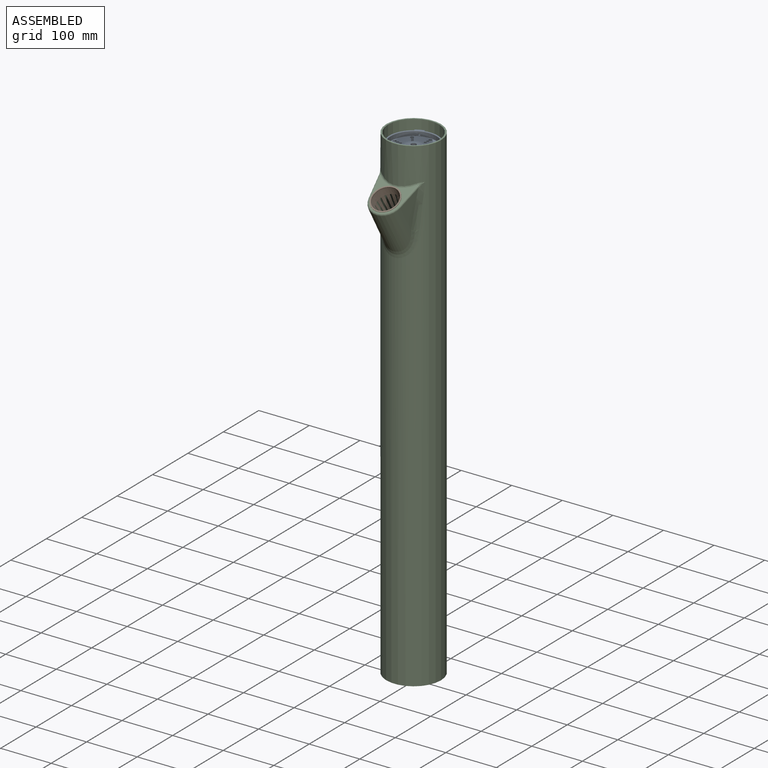
[diagram: assembled view]
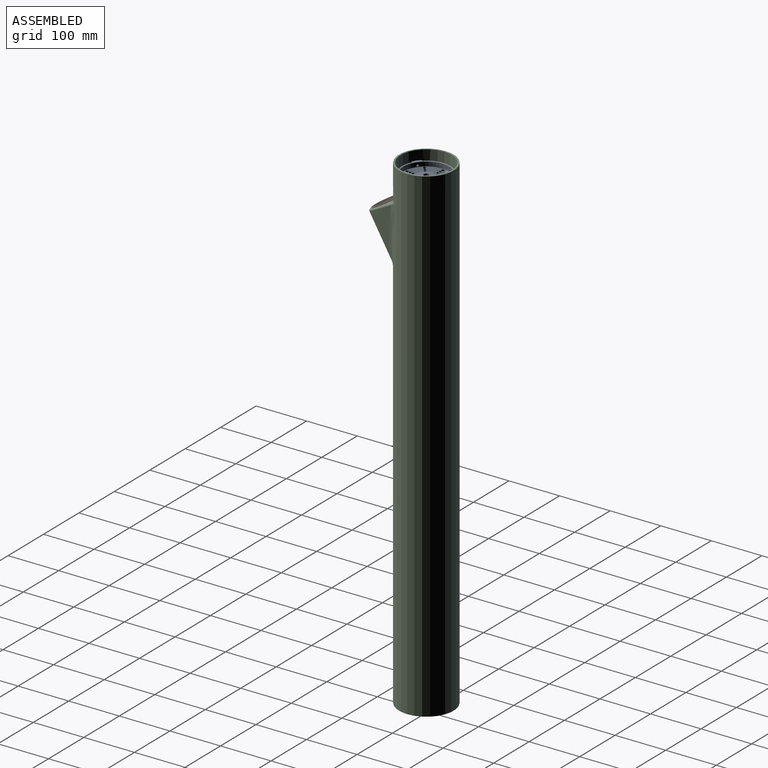
[diagram: assembled view, second angle]
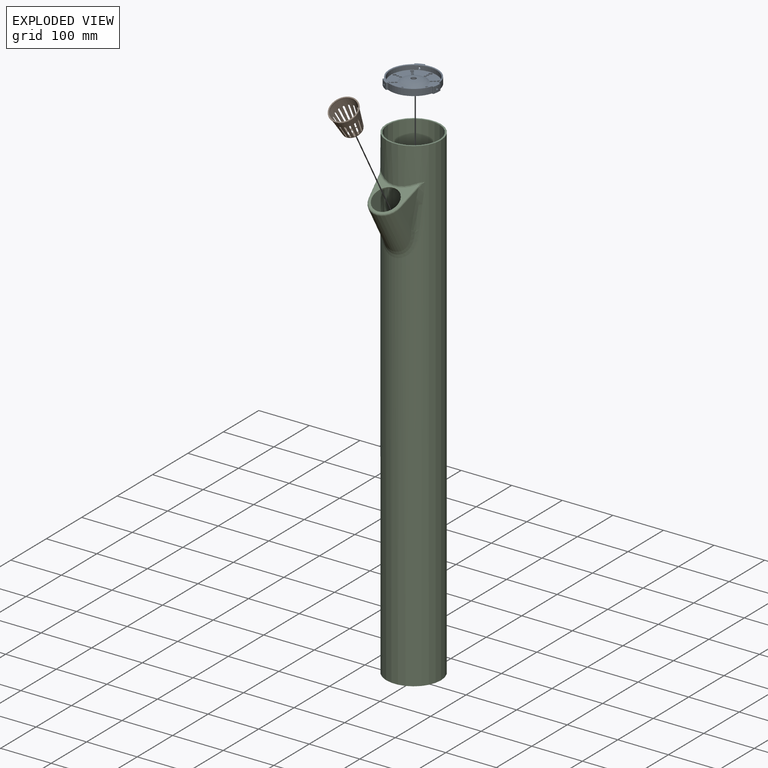
[diagram: exploded view]
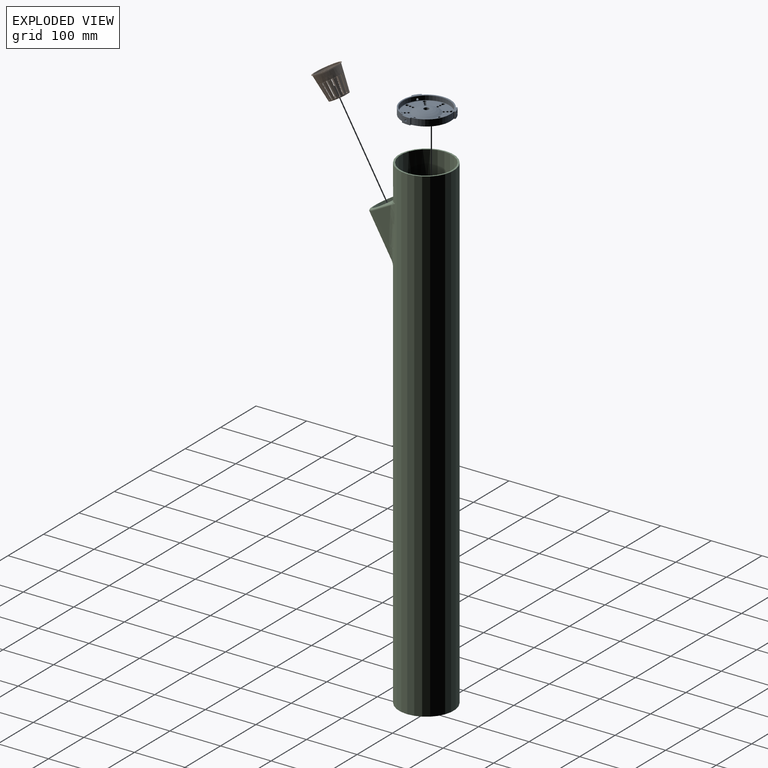
[diagram: exploded view, second angle]
ASSEMBLY  parts=3 mates=2
PART A: 55 faces, bbox 100.8x101.2x12.7 mm
  f0: plane 98.55x95.5mm, normal (0,0,-1), area 6702mm2, adj f1,f2,f3,f5,f11,f12,f13,f14
  f1: cylinder r=50.8mm len=14.52mm, axis (0,0,-1), area 202mm2, adj f0,f6,f36,f50,f53
  f2: cylinder r=50.8mm len=15.28mm, axis (0,0,-1), area 212.2mm2, adj f0,f6,f37,f45,f51
  f3: cylinder r=50.8mm len=16.85mm, axis (0,0,-1), area 202mm2, adj f0,f6,f35,f46,f54
  f4: cylinder r=45.21mm len=90.42mm, axis (0,0,-1), area 2216.1mm2, adj f7,f8,f35,f36,f37
  f5: cylinder r=5.08mm len=10.16mm, axis (0,0,-1), area 304mm2, adj f0,f10
  f6: plane 98.55x95.5mm, normal (0,0,1), area 672.2mm2, adj f1,f2,f3,f7,f38,f39,f40,f41
  f7: torus R=46.01mm, axis (0,0,-1), area 356.5mm2, adj f4,f6
  f8: torus R=44.42mm, axis (0,0,-1), area 351.9mm2, adj f4,f9
  f9: plane 88.84x88.84mm, normal (0,0,1), area 3509.7mm2, adj f8,f10,f11,f12,f13,f14,f15,f16
  f10: torus R=5.1mm, axis (0,0,-1), area 2236.1mm2, adj f5,f9
  f11: cylinder r=2.38mm len=4.76mm, axis (0,0,-1), area 47.5mm2, adj f0,f9
  f12: cylinder r=2.38mm len=4.76mm, axis (0,0,-1), area 47.5mm2, adj f0,f9
  f13: cylinder r=2.38mm len=4.76mm, axis (0,0,-1), area 47.5mm2, adj f0,f9
  f14: cylinder r=2.38mm len=4.76mm, axis (0,0,-1), area 47.5mm2, adj f0,f9
  f15: cylinder r=3.17mm len=6.35mm, axis (0,0,-1), area 63.3mm2, adj f0,f9
  f16: cylinder r=2.38mm len=4.76mm, axis (0,0,-1), area 47.5mm2, adj f0,f9
  f17: cylinder r=2.38mm len=4.76mm, axis (0,0,-1), area 47.5mm2, adj f0,f9
  f18: cylinder r=3.17mm len=6.35mm, axis (0,0,-1), area 63.3mm2, adj f0,f9
  f19: cylinder r=3.17mm len=6.35mm, axis (0,0,-1), area 63.3mm2, adj f0,f9
  f20: cylinder r=2.38mm len=4.76mm, axis (0,0,-1), area 47.5mm2, adj f0,f9
  f21: cylinder r=2.38mm len=4.76mm, axis (0,0,-1), area 47.5mm2, adj f0,f9
  f22: cylinder r=2.38mm len=4.76mm, axis (0,0,-1), area 47.5mm2, adj f0,f9
  f23: cylinder r=2.38mm len=4.76mm, axis (0,0,-1), area 47.5mm2, adj f0,f9
  f24: cylinder r=3.17mm len=6.35mm, axis (0,0,-1), area 63.3mm2, adj f0,f9
  f25: cylinder r=2.38mm len=4.76mm, axis (0,0,-1), area 47.5mm2, adj f0,f9
  f26: cylinder r=3.17mm len=6.35mm, axis (0,0,-1), area 63.3mm2, adj f0,f9
  f27: cylinder r=2.38mm len=4.76mm, axis (0,0,-1), area 47.5mm2, adj f0,f9
  f28: cylinder r=2.38mm len=4.76mm, axis (0,0,-1), area 47.5mm2, adj f0,f9
  f29: cylinder r=3.17mm len=6.35mm, axis (0,0,-1), area 63.3mm2, adj f0,f9
  f30: cylinder r=2.38mm len=4.76mm, axis (0,0,-1), area 47.5mm2, adj f0,f9
  f31: cylinder r=3.17mm len=6.35mm, axis (0,0,-1), area 63.3mm2, adj f0,f9
  f32: cylinder r=2.38mm len=4.76mm, axis (0,0,-1), area 47.5mm2, adj f0,f9
  f33: cylinder r=3.17mm len=6.35mm, axis (0,0,-1), area 63.3mm2, adj f0,f9
  f34: cylinder r=2.38mm len=4.76mm, axis (0,0,-1), area 47.5mm2, adj f0,f9
  f35: cylinder r=2.03mm len=5.63mm, axis (0,-1,0), area 71.4mm2, adj f3,f4
  f36: cylinder r=2.03mm len=6.91mm, axis (-0.87,0.5,0), area 71.4mm2, adj f1,f4
  f37: cylinder r=2.03mm len=6.91mm, axis (0.87,0.5,0), area 71.4mm2, adj f2,f4
  f38: cylinder r=0.79mm len=12.7mm, axis (0,0,-1), area 15.7mm2, adj f0,f6,f39,f42
  f39: plane 12.7x1.44mm, normal (-0.98,0.17,0), area 18.6mm2, adj f0,f6,f38,f54
  f40: plane 12.7x1.37mm, normal (-0.34,-0.94,0), area 18.6mm2, adj f0,f6,f41,f53
  f41: cylinder r=0.79mm len=12.7mm, axis (0,0,-1), area 15.7mm2, adj f0,f6,f40,f42
  f42: cylinder r=47.75mm len=62.48mm, axis (0,0,-1), area 1038.6mm2, adj f0,f6,f38,f41
  f43: cylinder r=47.75mm len=62.48mm, axis (0,0,-1), area 1038.6mm2, adj f0,f6,f44,f47
  f44: cylinder r=0.79mm len=12.7mm, axis (0,0,-1), area 15.7mm2, adj f0,f6,f43,f45
  f45: plane 12.7x2.12mm, normal (0.34,-0.94,0), area 28.7mm2, adj f0,f2,f6,f44
  f46: plane 12.7x2.23mm, normal (0.98,0.17,0), area 28.7mm2, adj f0,f3,f6,f47
  f47: cylinder r=0.79mm len=12.7mm, axis (0,0,-1), area 15.7mm2, adj f0,f6,f43,f46
  f48: cylinder r=47.75mm len=72.15mm, axis (0,0,-1), area 1038.6mm2, adj f0,f6,f49,f52
  f49: cylinder r=0.79mm len=12.7mm, axis (0,0,-1), area 15.7mm2, adj f0,f6,f48,f50
  f50: plane 12.7x1.73mm, normal (0.64,0.77,0), area 28.7mm2, adj f0,f1,f6,f49
  f51: plane 12.7x1.73mm, normal (-0.64,0.77,0), area 28.7mm2, adj f0,f2,f6,f52
  f52: cylinder r=0.79mm len=12.7mm, axis (0,0,-1), area 15.7mm2, adj f0,f6,f48,f51
  f53: cylinder r=0.79mm len=12.7mm, axis (0,0,-1), area 16mm2, adj f0,f1,f6,f40
  f54: cylinder r=0.79mm len=12.7mm, axis (0,0,-1), area 16mm2, adj f0,f3,f6,f39
PART B: 77 faces, bbox 54x54x50.8 mm
  f0: plane 37.19x37.19mm, normal (0,0,-1), area 801.3mm2, adj f1,f73,f74,f75,f76
  f1: cone r=18.6mm half-angle=8deg, axis (0,0,1), area 5078.8mm2, adj f0,f2,f9,f10,f11,f12,f13,f14
  f2: cylinder r=25.4mm len=50.8mm, axis (0,0,-1), area 253.4mm2, adj f1,f3
  f3: plane 53.98x53.98mm, normal (0,0,-1), area 261.3mm2, adj f2,f4
  f4: cylinder r=26.99mm len=53.98mm, axis (0,0,-1), area 134.6mm2, adj f3,f5
  f5: plane 53.98x53.98mm, normal (0,0,1), area 386mm2, adj f4,f6
  f6: cylinder r=24.61mm len=49.21mm, axis (0,0,-1), area 359.6mm2, adj f5,f7
  f7: cone r=24.61mm half-angle=8deg, axis (0,0,1), area 4750.6mm2, adj f6,f8,f9,f10,f11,f12,f13,f14
  f8: plane 35.81x35.81mm, normal (0,0,1), area 722.2mm2, adj f7,f73,f74,f75,f76
  f9: cylinder r=1.59mm len=3.18mm, axis (0,-1,0), area 4mm2, adj f1,f7,f10,f12
  f10: plane 30.04x5.07mm, normal (1,0,0), area 24.1mm2, adj f1,f7,f9,f11
  f11: cylinder r=1.59mm len=3.18mm, axis (0,-1,0), area 4mm2, adj f1,f7,f10,f12
  f12: plane 30.04x5.07mm, normal (-1,0,0), area 24.1mm2, adj f1,f7,f9,f11
  f13: cylinder r=1.59mm len=3.3mm, axis (-0.38,-0.92,0), area 4mm2, adj f1,f7,f14,f16
  f14: plane 30.04x4.68mm, normal (0.92,-0.38,0), area 24.1mm2, adj f1,f7,f13,f15
  f15: cylinder r=1.59mm len=3.35mm, axis (-0.38,-0.92,0), area 4mm2, adj f1,f7,f14,f16
  f16: plane 30.04x4.68mm, normal (-0.92,0.38,0), area 24.1mm2, adj f1,f7,f13,f15
  f17: cylinder r=1.59mm len=2.92mm, axis (-0.71,-0.71,0), area 4mm2, adj f1,f7,f18,f20
  f18: plane 30.04x3.59mm, normal (0.71,-0.71,0), area 24.1mm2, adj f1,f7,f17,f19
  f19: cylinder r=1.59mm len=3.01mm, axis (-0.71,-0.71,0), area 4mm2, adj f1,f7,f18,f20
  f20: plane 30.04x3.59mm, normal (-0.71,0.71,0), area 24.1mm2, adj f1,f7,f17,f19
  f21: cylinder r=1.59mm len=3.3mm, axis (-0.92,-0.38,0), area 4mm2, adj f1,f7,f22,f24
  f22: plane 30.04x4.68mm, normal (0.38,-0.92,0), area 24.1mm2, adj f1,f7,f21,f23
  f23: cylinder r=1.59mm len=3.35mm, axis (-0.92,-0.38,0), area 4mm2, adj f1,f7,f22,f24
  f24: plane 30.04x4.68mm, normal (-0.38,0.92,0), area 24.1mm2, adj f1,f7,f21,f23
  f25: cylinder r=1.59mm len=3.18mm, axis (-1,0,0), area 4mm2, adj f1,f7,f26,f28
  f26: plane 30.04x5.07mm, normal (0,-1,0), area 24.1mm2, adj f1,f7,f25,f27
  f27: cylinder r=1.59mm len=3.18mm, axis (-1,0,0), area 4mm2, adj f1,f7,f26,f28
  f28: plane 30.04x5.07mm, normal (0,1,0), area 24.1mm2, adj f1,f7,f25,f27
  f29: cylinder r=1.59mm len=3.3mm, axis (-0.92,0.38,0), area 4mm2, adj f1,f7,f30,f32
  f30: plane 30.04x4.68mm, normal (-0.38,-0.92,0), area 24.1mm2, adj f1,f7,f29,f31
  f31: cylinder r=1.59mm len=3.35mm, axis (-0.92,0.38,0), area 4mm2, adj f1,f7,f30,f32
  f32: plane 30.04x4.68mm, normal (0.38,0.92,0), area 24.1mm2, adj f1,f7,f29,f31
  f33: cylinder r=1.59mm len=2.92mm, axis (-0.71,0.71,0), area 4mm2, adj f1,f7,f34,f36
  f34: plane 30.04x3.59mm, normal (-0.71,-0.71,0), area 24.1mm2, adj f1,f7,f33,f35
  f35: cylinder r=1.59mm len=3.01mm, axis (-0.71,0.71,0), area 4mm2, adj f1,f7,f34,f36
  f36: plane 30.04x3.59mm, normal (0.71,0.71,0), area 24.1mm2, adj f1,f7,f33,f35
  f37: cylinder r=1.59mm len=3.3mm, axis (-0.38,0.92,0), area 4mm2, adj f1,f7,f38,f40
  f38: plane 30.04x4.68mm, normal (-0.92,-0.38,0), area 24.1mm2, adj f1,f7,f37,f39
  f39: cylinder r=1.59mm len=3.35mm, axis (-0.38,0.92,0), area 4mm2, adj f1,f7,f38,f40
  f40: plane 30.04x4.68mm, normal (0.92,0.38,0), area 24.1mm2, adj f1,f7,f37,f39
  f41: cylinder r=1.59mm len=3.18mm, axis (0,1,0), area 4mm2, adj f1,f7,f42,f44
  f42: plane 30.04x5.07mm, normal (-1,0,0), area 24.1mm2, adj f1,f7,f41,f43
  f43: cylinder r=1.59mm len=3.18mm, axis (0,1,0), area 4mm2, adj f1,f7,f42,f44
  f44: plane 30.04x5.07mm, normal (1,0,0), area 24.1mm2, adj f1,f7,f41,f43
  f45: cylinder r=1.59mm len=3.3mm, axis (0.38,0.92,0), area 4mm2, adj f1,f7,f46,f48
  f46: plane 30.04x4.68mm, normal (-0.92,0.38,0), area 24.1mm2, adj f1,f7,f45,f47
  f47: cylinder r=1.59mm len=3.35mm, axis (0.38,0.92,0), area 4mm2, adj f1,f7,f46,f48
  f48: plane 30.04x4.68mm, normal (0.92,-0.38,0), area 24.1mm2, adj f1,f7,f45,f47
  f49: cylinder r=1.59mm len=2.92mm, axis (0.71,0.71,0), area 4mm2, adj f1,f7,f50,f52
  f50: plane 30.04x3.59mm, normal (-0.71,0.71,0), area 24.1mm2, adj f1,f7,f49,f51
  f51: cylinder r=1.59mm len=3.01mm, axis (0.71,0.71,0), area 4mm2, adj f1,f7,f50,f52
  f52: plane 30.04x3.59mm, normal (0.71,-0.71,0), area 24.1mm2, adj f1,f7,f49,f51
  f53: cylinder r=1.59mm len=3.3mm, axis (0.92,0.38,0), area 4mm2, adj f1,f7,f54,f56
  f54: plane 30.04x4.68mm, normal (-0.38,0.92,0), area 24.1mm2, adj f1,f7,f53,f55
  f55: cylinder r=1.59mm len=3.35mm, axis (0.92,0.38,0), area 4mm2, adj f1,f7,f54,f56
  f56: plane 30.04x4.68mm, normal (0.38,-0.92,0), area 24.1mm2, adj f1,f7,f53,f55
  f57: cylinder r=1.59mm len=3.18mm, axis (1,0,0), area 4mm2, adj f1,f7,f58,f60
  f58: plane 30.04x5.07mm, normal (0,1,0), area 24.1mm2, adj f1,f7,f57,f59
  f59: cylinder r=1.59mm len=3.18mm, axis (1,0,0), area 4mm2, adj f1,f7,f58,f60
  f60: plane 30.04x5.07mm, normal (0,-1,0), area 24.1mm2, adj f1,f7,f57,f59
  f61: cylinder r=1.59mm len=3.3mm, axis (0.92,-0.38,0), area 4mm2, adj f1,f7,f62,f64
  f62: plane 30.04x4.68mm, normal (0.38,0.92,0), area 24.1mm2, adj f1,f7,f61,f63
  f63: cylinder r=1.59mm len=3.35mm, axis (0.92,-0.38,0), area 4mm2, adj f1,f7,f62,f64
  f64: plane 30.04x4.68mm, normal (-0.38,-0.92,0), area 24.1mm2, adj f1,f7,f61,f63
  f65: cylinder r=1.59mm len=2.92mm, axis (0.71,-0.71,0), area 4mm2, adj f1,f7,f66,f68
  f66: plane 30.04x3.59mm, normal (0.71,0.71,0), area 24.1mm2, adj f1,f7,f65,f67
  f67: cylinder r=1.59mm len=3.01mm, axis (0.71,-0.71,0), area 4mm2, adj f1,f7,f66,f68
  f68: plane 30.04x3.59mm, normal (-0.71,-0.71,0), area 24.1mm2, adj f1,f7,f65,f67
  f69: cylinder r=1.59mm len=3.3mm, axis (0.38,-0.92,0), area 4mm2, adj f1,f7,f70,f72
  f70: plane 30.04x4.68mm, normal (0.92,0.38,0), area 24.1mm2, adj f1,f7,f69,f71
  f71: cylinder r=1.59mm len=3.35mm, axis (0.38,-0.92,0), area 4mm2, adj f1,f7,f70,f72
  f72: plane 30.04x4.68mm, normal (-0.92,-0.38,0), area 24.1mm2, adj f1,f7,f69,f71
  f73: cylinder r=4.76mm len=9.53mm, axis (0,0,1), area 23.8mm2, adj f0,f8
  f74: cylinder r=4.76mm len=9.53mm, axis (0,0,1), area 23.8mm2, adj f0,f8
  f75: cylinder r=4.76mm len=9.53mm, axis (0,0,1), area 23.8mm2, adj f0,f8
  f76: cylinder r=4.76mm len=9.53mm, axis (0,0,1), area 23.8mm2, adj f0,f8
PART C: 30 faces, bbox 109.6x162.8x966.8 mm
  f0: cylinder r=53.98mm len=965.2mm, axis (0,0,1), area 316268.4mm2, adj f1,f2,f7,f8,f9,f12,f14,f16
  f1: plane 107.95x107.95mm, normal (0,0,1), area 1045.1mm2, adj f0,f18
  f2: plane 107.95x107.95mm, normal (0,0,-1), area 9152.4mm2, adj f0
  f3: plane 75.75x40.74mm, normal (0.98,-0.15,-0.09), area 1342.3mm2, adj f4,f9,f15
  f4: cylinder r=31.75mm len=94.96mm, axis (0,-0.5,0.87), area 7574.1mm2, adj f3,f5,f8,f13
  f5: plane 75.75x40.74mm, normal (-0.98,-0.15,-0.09), area 1342.3mm2, adj f4,f7,f11
  f6: plane 72.87x61.03mm, normal (0,-0.5,0.87), area 1243mm2, adj f10,f11,f13,f14,f15,f17,f29
  f7: bspline ~137.38x27.65mm, area 1133.1mm2, adj f0,f5,f8,f10
  f8: bspline ~77.38x63mm, area 1763.9mm2, adj f0,f4,f7,f9
  f9: bspline ~137.38x27.65mm, area 1133.1mm2, adj f0,f3,f8,f17
  f10: bspline ~19.06x13.97mm, area 41mm2, adj f6,f7,f11,f12
  f11: cylinder r=3.17mm len=40.29mm, axis (0.17,-0.85,-0.49), area 228.7mm2, adj f5,f6,f10,f13
  f12: bspline ~12.3x10.53mm, area 18.3mm2, adj f0,f10,f14
  f13: torus R=28.57mm, axis (0,-0.5,0.87), area 426.1mm2, adj f4,f6,f11,f15
  f14: bspline ~72.87x14.07mm, area 272.1mm2, adj f0,f6,f12,f16
  f15: cylinder r=3.17mm len=40.29mm, axis (0.17,0.85,0.49), area 228.7mm2, adj f3,f6,f13,f17
  f16: bspline ~12.3x10.53mm, area 18.5mm2, adj f0,f14,f17
  f17: bspline ~19.31x14.11mm, area 41mm2, adj f6,f9,f15,f16
  f18: cylinder r=50.8mm len=962.03mm, axis (0,0,1), area 296608.9mm2, adj f1,f19,f24,f25,f26,f27,f28
  f19: plane 101.6x101.6mm, normal (0,0,1), area 8107.3mm2, adj f18
  f20: plane 75.75x40.74mm, normal (-0.98,0.15,0.09), area 1342.3mm2, adj f21,f23,f26
  f21: cylinder r=28.57mm len=93.65mm, axis (0,-0.5,0.87), area 6816.7mm2, adj f20,f22,f23,f25
  f22: plane 75.75x40.74mm, normal (0.98,0.15,0.09), area 1342.3mm2, adj f21,f23,f24
  f23: plane 72.87x61.03mm, normal (0,0.5,-0.87), area 1243mm2, adj f20,f21,f22,f24,f26,f27,f29
  f24: bspline ~137.65x28.72mm, area 1309mm2, adj f18,f22,f23,f25,f27
  f25: bspline ~72.83x63.15mm, area 1895.8mm2, adj f18,f21,f24,f26
  f26: bspline ~137.65x28.72mm, area 1274.2mm2, adj f18,f20,f23,f25,f28
  f27: bspline ~83.99x26.46mm, area 592mm2, adj f18,f23,f24,f28
  f28: bspline ~12.55x9.91mm, area 33.5mm2, adj f18,f26,f27
  f29: cylinder r=25.4mm len=50.8mm, axis (0,-0.5,0.87), area 506.7mm2, adj f6,f23
PLACE A rot(axis=(0,0,1),83.6deg) t=(-0.98,-3.72,-5.98)mm
PLACE B rot(axis=(1,0,0),30deg) t=(-0.98,-57.84,-132.9)mm
PLACE C t=(-0.98,-3.72,0.2)mm fixed
MATE cylindrical A.f1 <-> C.f0  axis (0,0,-1) through (-0.98,-3.72,-31.38)mm
MATE revolute B.f1 <-> C.f13  axis (0,0.5,-0.87) through (-0.98,-82.44,-90.29)mm
